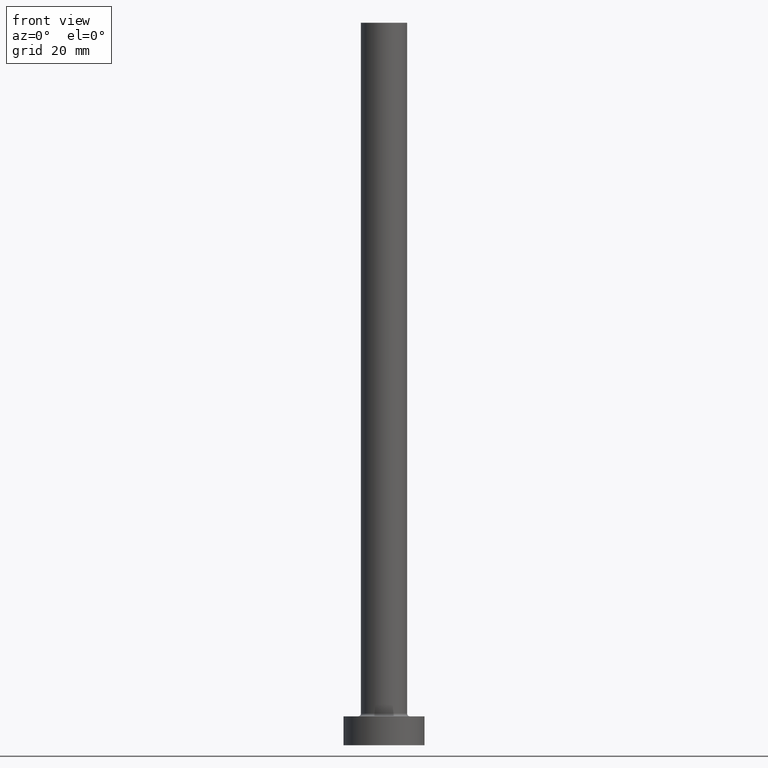
[diagram: clean part render]
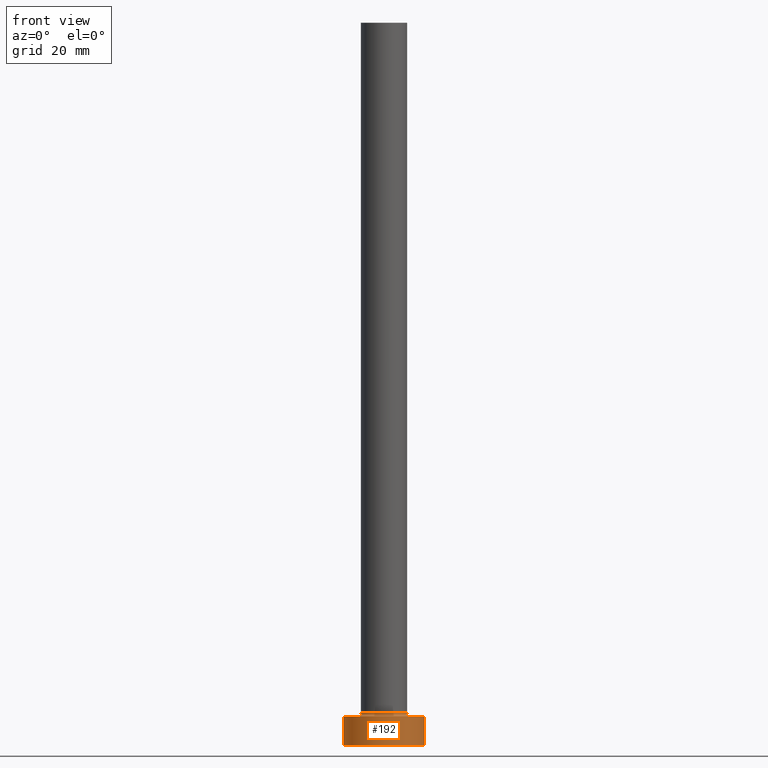
[diagram: same view with one face highlighted and labeled with its STEP entity id]
A machine part, front view. The second image highlights one B-rep face of the part: STEP entity #192.
In plain terms, the highlighted cylindrical surface (partial cylindrical patch) has radius 7 mm, axis along (-0, -0, -1).
Its self-contained STEP definition (entity closure, byte-faithful):
#25 = LINE ( 'NONE', #104, #255 ) ;
#37 = DIRECTION ( 'NONE',  ( -1.000000000000000000, 0.000000000000000000, 0.000000000000000000 ) ) ;
#48 = DIRECTION ( 'NONE',  ( 0.000000000000000000, 0.000000000000000000, 1.000000000000000000 ) ) ;
#58 = CARTESIAN_POINT ( 'NONE',  ( 0.000000000000000000, 0.000000000000000000, 0.000000000000000000 ) ) ;
#67 = DIRECTION ( 'NONE',  ( -0.000000000000000000, -0.000000000000000000, -1.000000000000000000 ) ) ;
#70 = CARTESIAN_POINT ( 'NONE',  ( 0.000000000000000000, 0.000000000000000000, 5.000000000000000000 ) ) ;
#96 = VERTEX_POINT ( 'NONE', #307 ) ;
#102 = AXIS2_PLACEMENT_3D ( 'NONE', #70, #215, #37 ) ;
#104 = CARTESIAN_POINT ( 'NONE',  ( 7.000000000000000000, 8.572527594031473190E-16, 5.000000000000000000 ) ) ;
#106 = EDGE_CURVE ( 'NONE', #288, #96, #430, .T. ) ;
#110 = FACE_OUTER_BOUND ( 'NONE', #451, .T. ) ;
#120 = CIRCLE ( 'NONE', #381, 7.000000000000000000 ) ;
#129 = EDGE_CURVE ( 'NONE', #288, #392, #136, .T. ) ;
#136 = LINE ( 'NONE', #414, #391 ) ;
#137 = EDGE_CURVE ( 'NONE', #96, #424, #25, .T. ) ;
#140 = ORIENTED_EDGE ( 'NONE', *, *, #129, .T. ) ;
#142 = ORIENTED_EDGE ( 'NONE', *, *, #349, .T. ) ;
#166 = AXIS2_PLACEMENT_3D ( 'NONE', #371, #48, #438 ) ;
#174 = DIRECTION ( 'NONE',  ( 0.000000000000000000, 0.000000000000000000, 1.000000000000000000 ) ) ;
#192 = ADVANCED_FACE ( 'NONE', ( #110 ), #393, .T. ) ;
#215 = DIRECTION ( 'NONE',  ( -0.000000000000000000, -0.000000000000000000, -1.000000000000000000 ) ) ;
#240 = DIRECTION ( 'NONE',  ( -0.000000000000000000, -0.000000000000000000, -1.000000000000000000 ) ) ;
#246 = ORIENTED_EDGE ( 'NONE', *, *, #137, .F. ) ;
#255 = VECTOR ( 'NONE', #67, 1000.000000000000000 ) ;
#269 = CARTESIAN_POINT ( 'NONE',  ( 7.000000000000000000, 8.572527594031473190E-16, 0.000000000000000000 ) ) ;
#288 = VERTEX_POINT ( 'NONE', #314 ) ;
#303 = CARTESIAN_POINT ( 'NONE',  ( -7.000000000000000000, 0.000000000000000000, 0.000000000000000000 ) ) ;
#307 = CARTESIAN_POINT ( 'NONE',  ( 7.000000000000000000, 8.572527594031473190E-16, 5.000000000000000000 ) ) ;
#314 = CARTESIAN_POINT ( 'NONE',  ( -7.000000000000000000, 0.000000000000000000, 5.000000000000000000 ) ) ;
#349 = EDGE_CURVE ( 'NONE', #392, #424, #120, .T. ) ;
#371 = CARTESIAN_POINT ( 'NONE',  ( 0.000000000000000000, 0.000000000000000000, 5.000000000000000000 ) ) ;
#381 = AXIS2_PLACEMENT_3D ( 'NONE', #58, #174, #419 ) ;
#391 = VECTOR ( 'NONE', #240, 1000.000000000000000 ) ;
#392 = VERTEX_POINT ( 'NONE', #303 ) ;
#393 = CYLINDRICAL_SURFACE ( 'NONE', #102, 7.000000000000000000 ) ;
#414 = CARTESIAN_POINT ( 'NONE',  ( -7.000000000000000000, 0.000000000000000000, 5.000000000000000000 ) ) ;
#419 = DIRECTION ( 'NONE',  ( 1.000000000000000000, 0.000000000000000000, 0.000000000000000000 ) ) ;
#424 = VERTEX_POINT ( 'NONE', #269 ) ;
#430 = CIRCLE ( 'NONE', #166, 7.000000000000000000 ) ;
#438 = DIRECTION ( 'NONE',  ( 1.000000000000000000, 0.000000000000000000, 0.000000000000000000 ) ) ;
#444 = ORIENTED_EDGE ( 'NONE', *, *, #106, .F. ) ;
#451 = EDGE_LOOP ( 'NONE', ( #246, #444, #140, #142 ) ) ;